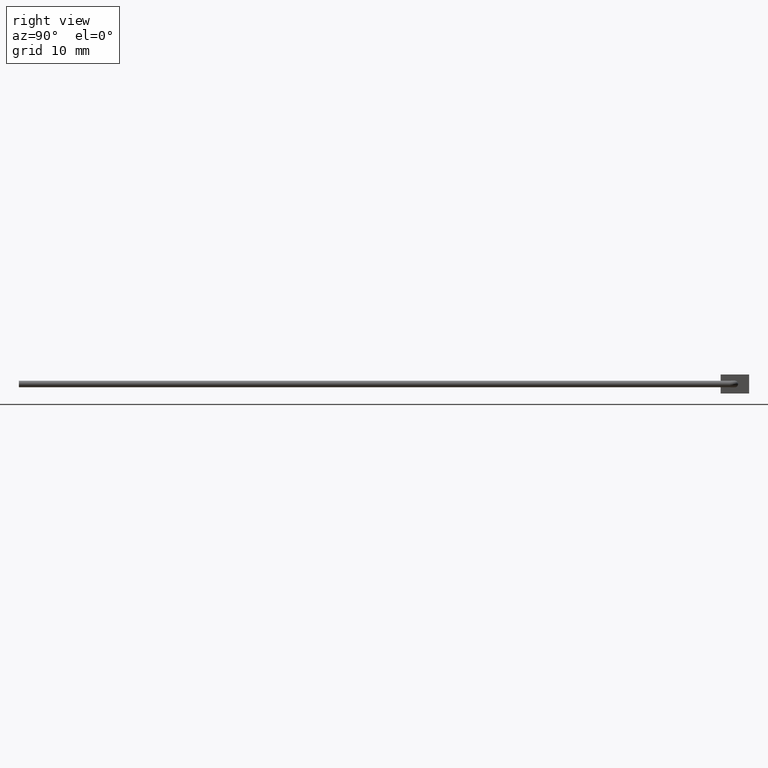
[diagram: clean part render]
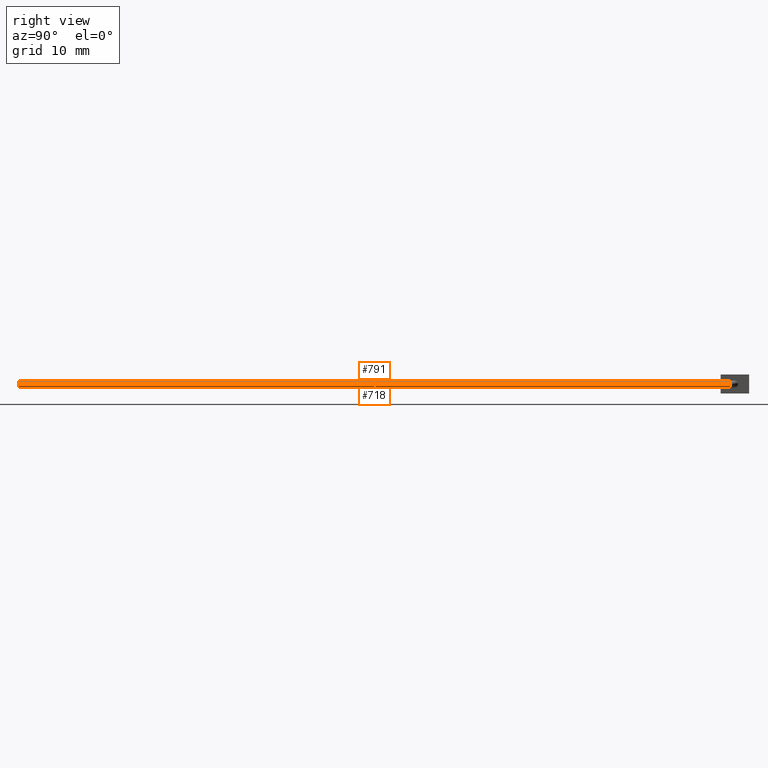
[diagram: same view with one multi-face feature highlighted, each face labeled with its STEP entity id]
A machine part, right view. The highlighted faces form ONE feature: a constant-radius fillet chain: 2 tangent blend faces with common blend radius 0.35 mm. The faces share edges in the B-rep.
Their STEP definitions:
[1] entity #718 (Cylinder):
#17 = LINE ( 'NONE', #620, #209 ) ;
#44 = ORIENTED_EDGE ( 'NONE', *, *, #376, .T. ) ;
#51 = EDGE_CURVE ( 'NONE', #809, #390, #292, .T. ) ;
#94 = EDGE_LOOP ( 'NONE', ( #146, #249, #44, #719 ) ) ;
#96 = LINE ( 'NONE', #348, #692 ) ;
#139 = AXIS2_PLACEMENT_3D ( 'NONE', #885, #967, #423 ) ;
#146 = ORIENTED_EDGE ( 'NONE', *, *, #578, .F. ) ;
#188 = CARTESIAN_POINT ( 'NONE',  ( 2.002776169258573269, 1.000000000000000000, -2.168404344971008868E-16 ) ) ;
#202 = CIRCLE ( 'NONE', #466, 0.3499999999999999778 ) ;
#209 = VECTOR ( 'NONE', #460, 1000.000000000000000 ) ;
#249 = ORIENTED_EDGE ( 'NONE', *, *, #51, .T. ) ;
#290 = DIRECTION ( 'NONE',  ( -1.243218491116711833E-16, -1.000000000000000000, 0.0000000000000000000 ) ) ;
#292 = CIRCLE ( 'NONE', #139, 0.3499999999999999778 ) ;
#299 = DIRECTION ( 'NONE',  ( -1.243218491116711833E-16, -1.000000000000000000, 0.0000000000000000000 ) ) ;
#348 = CARTESIAN_POINT ( 'NONE',  ( 1.302776169258573091, 1.000000000000000222, -1.739777965269435209E-16 ) ) ;
#368 = CARTESIAN_POINT ( 'NONE',  ( 1.652776169258563854, -74.00000000000000000, -2.168404344971008868E-16 ) ) ;
#376 = EDGE_CURVE ( 'NONE', #390, #679, #17, .T. ) ;
#390 = VERTEX_POINT ( 'NONE', #188 ) ;
#423 = DIRECTION ( 'NONE',  ( 0.0000000000000000000, 0.0000000000000000000, 1.000000000000000000 ) ) ;
#460 = DIRECTION ( 'NONE',  ( -1.243218491116711833E-16, -1.000000000000000000, 0.0000000000000000000 ) ) ;
#466 = AXIS2_PLACEMENT_3D ( 'NONE', #368, #290, #994 ) ;
#497 = VERTEX_POINT ( 'NONE', #889 ) ;
#498 = CARTESIAN_POINT ( 'NONE',  ( 2.002776169258563499, -74.00000000000000000, -2.168404344971008868E-16 ) ) ;
#521 = AXIS2_PLACEMENT_3D ( 'NONE', #897, #299, #681 ) ;
#578 = EDGE_CURVE ( 'NONE', #809, #497, #96, .T. ) ;
#620 = CARTESIAN_POINT ( 'NONE',  ( 2.002776169258573269, 1.000000000000000222, -2.168404344971008868E-16 ) ) ;
#626 = CARTESIAN_POINT ( 'NONE',  ( 1.302776169258573091, 1.000000000000000000, -1.739777965269435209E-16 ) ) ;
#679 = VERTEX_POINT ( 'NONE', #498 ) ;
#680 = FACE_OUTER_BOUND ( 'NONE', #94, .T. ) ;
#681 = DIRECTION ( 'NONE',  ( 1.000000000000000000, 0.0000000000000000000, 0.0000000000000000000 ) ) ;
#692 = VECTOR ( 'NONE', #893, 1000.000000000000000 ) ;
#718 = ADVANCED_FACE ( 'NONE', ( #680 ), #797, .T. ) ;
#719 = ORIENTED_EDGE ( 'NONE', *, *, #742, .F. ) ;
#742 = EDGE_CURVE ( 'NONE', #497, #679, #202, .T. ) ;
#797 = CYLINDRICAL_SURFACE ( 'NONE', #521, 0.3500000000000000333 ) ;
#809 = VERTEX_POINT ( 'NONE', #626 ) ;
#885 = CARTESIAN_POINT ( 'NONE',  ( 1.652776169258573180, 1.000000000000000000, -2.168404344971008868E-16 ) ) ;
#889 = CARTESIAN_POINT ( 'NONE',  ( 1.302776169258563765, -74.00000000000000000, -1.739777965269429539E-16 ) ) ;
#893 = DIRECTION ( 'NONE',  ( -1.243218491116711833E-16, -1.000000000000000000, 0.0000000000000000000 ) ) ;
#897 = CARTESIAN_POINT ( 'NONE',  ( 1.652776169258573180, 1.000000000000000222, -2.168404344971008868E-16 ) ) ;
#967 = DIRECTION ( 'NONE',  ( 0.0000000000000000000, -1.000000000000000000, 0.0000000000000000000 ) ) ;
#994 = DIRECTION ( 'NONE',  ( 0.0000000000000000000, 0.0000000000000000000, 1.000000000000000000 ) ) ;
[2] entity #791 (Cylinder):
#17 = LINE ( 'NONE', #620, #209 ) ;
#31 = DIRECTION ( 'NONE',  ( -1.243218491116711833E-16, -1.000000000000000000, 0.0000000000000000000 ) ) ;
#39 = AXIS2_PLACEMENT_3D ( 'NONE', #862, #260, #722 ) ;
#96 = LINE ( 'NONE', #348, #692 ) ;
#142 = AXIS2_PLACEMENT_3D ( 'NONE', #659, #211, #753 ) ;
#165 = CIRCLE ( 'NONE', #142, 0.3499999999999999778 ) ;
#188 = CARTESIAN_POINT ( 'NONE',  ( 2.002776169258573269, 1.000000000000000000, -2.168404344971008868E-16 ) ) ;
#209 = VECTOR ( 'NONE', #460, 1000.000000000000000 ) ;
#211 = DIRECTION ( 'NONE',  ( 0.0000000000000000000, -1.000000000000000000, 0.0000000000000000000 ) ) ;
#227 = EDGE_CURVE ( 'NONE', #679, #497, #236, .T. ) ;
#234 = ORIENTED_EDGE ( 'NONE', *, *, #578, .T. ) ;
#236 = CIRCLE ( 'NONE', #39, 0.3499999999999999778 ) ;
#260 = DIRECTION ( 'NONE',  ( -1.243218491116711833E-16, -1.000000000000000000, 0.0000000000000000000 ) ) ;
#327 = CARTESIAN_POINT ( 'NONE',  ( 1.652776169258573180, 1.000000000000000222, -2.168404344971008868E-16 ) ) ;
#348 = CARTESIAN_POINT ( 'NONE',  ( 1.302776169258573091, 1.000000000000000222, -1.739777965269435209E-16 ) ) ;
#376 = EDGE_CURVE ( 'NONE', #390, #679, #17, .T. ) ;
#390 = VERTEX_POINT ( 'NONE', #188 ) ;
#400 = DIRECTION ( 'NONE',  ( 1.000000000000000000, 0.0000000000000000000, 0.0000000000000000000 ) ) ;
#436 = EDGE_CURVE ( 'NONE', #390, #809, #165, .T. ) ;
#460 = DIRECTION ( 'NONE',  ( -1.243218491116711833E-16, -1.000000000000000000, 0.0000000000000000000 ) ) ;
#497 = VERTEX_POINT ( 'NONE', #889 ) ;
#498 = CARTESIAN_POINT ( 'NONE',  ( 2.002776169258563499, -74.00000000000000000, -2.168404344971008868E-16 ) ) ;
#546 = AXIS2_PLACEMENT_3D ( 'NONE', #327, #31, #400 ) ;
#578 = EDGE_CURVE ( 'NONE', #809, #497, #96, .T. ) ;
#620 = CARTESIAN_POINT ( 'NONE',  ( 2.002776169258573269, 1.000000000000000222, -2.168404344971008868E-16 ) ) ;
#626 = CARTESIAN_POINT ( 'NONE',  ( 1.302776169258573091, 1.000000000000000000, -1.739777965269435209E-16 ) ) ;
#641 = EDGE_LOOP ( 'NONE', ( #911, #234, #649, #693 ) ) ;
#649 = ORIENTED_EDGE ( 'NONE', *, *, #227, .F. ) ;
#659 = CARTESIAN_POINT ( 'NONE',  ( 1.652776169258573180, 1.000000000000000000, -2.168404344971008868E-16 ) ) ;
#679 = VERTEX_POINT ( 'NONE', #498 ) ;
#692 = VECTOR ( 'NONE', #893, 1000.000000000000000 ) ;
#693 = ORIENTED_EDGE ( 'NONE', *, *, #376, .F. ) ;
#722 = DIRECTION ( 'NONE',  ( 0.0000000000000000000, 0.0000000000000000000, 1.000000000000000000 ) ) ;
#753 = DIRECTION ( 'NONE',  ( 0.0000000000000000000, 0.0000000000000000000, 1.000000000000000000 ) ) ;
#791 = ADVANCED_FACE ( 'NONE', ( #848 ), #950, .T. ) ;
#809 = VERTEX_POINT ( 'NONE', #626 ) ;
#848 = FACE_OUTER_BOUND ( 'NONE', #641, .T. ) ;
#862 = CARTESIAN_POINT ( 'NONE',  ( 1.652776169258563854, -74.00000000000000000, -2.168404344971008868E-16 ) ) ;
#889 = CARTESIAN_POINT ( 'NONE',  ( 1.302776169258563765, -74.00000000000000000, -1.739777965269429539E-16 ) ) ;
#893 = DIRECTION ( 'NONE',  ( -1.243218491116711833E-16, -1.000000000000000000, 0.0000000000000000000 ) ) ;
#911 = ORIENTED_EDGE ( 'NONE', *, *, #436, .T. ) ;
#950 = CYLINDRICAL_SURFACE ( 'NONE', #546, 0.3500000000000000333 ) ;